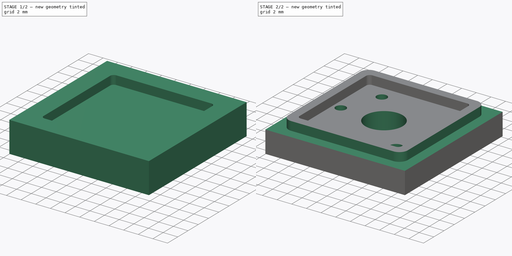
[diagram: build sequence overview — one tinted view per stage of 2, left to right]
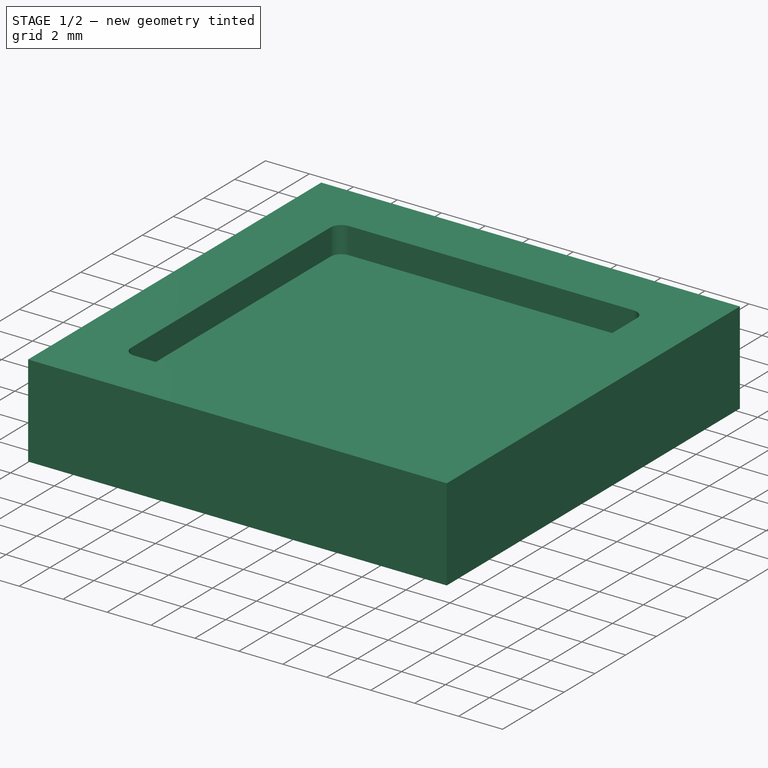
[diagram: stage 1 of 2 — iso view after this stage's code; geometry added in this stage tinted green]
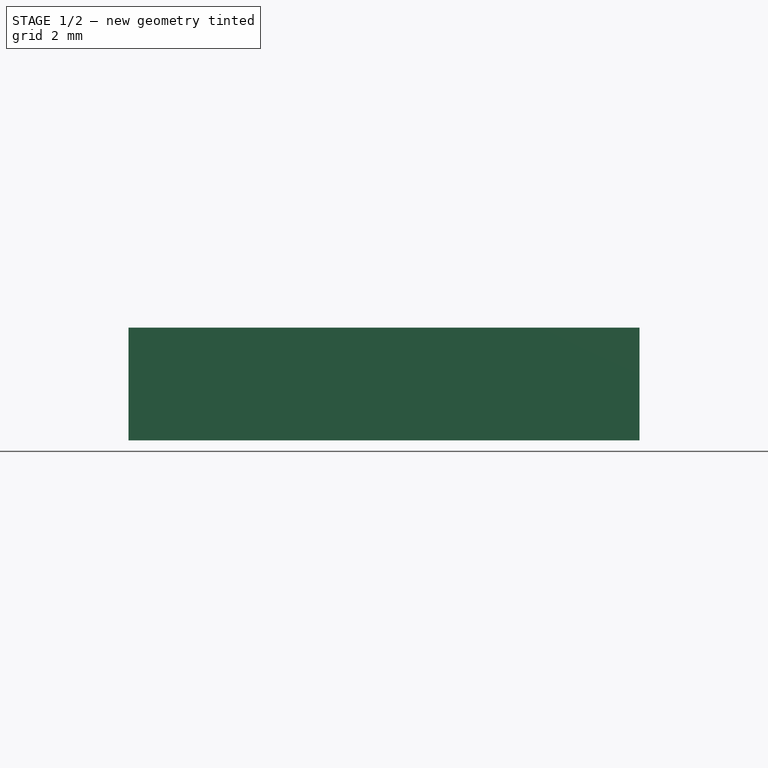
[diagram: stage 1 of 2 — front view after this stage's code; geometry added in this stage tinted green]
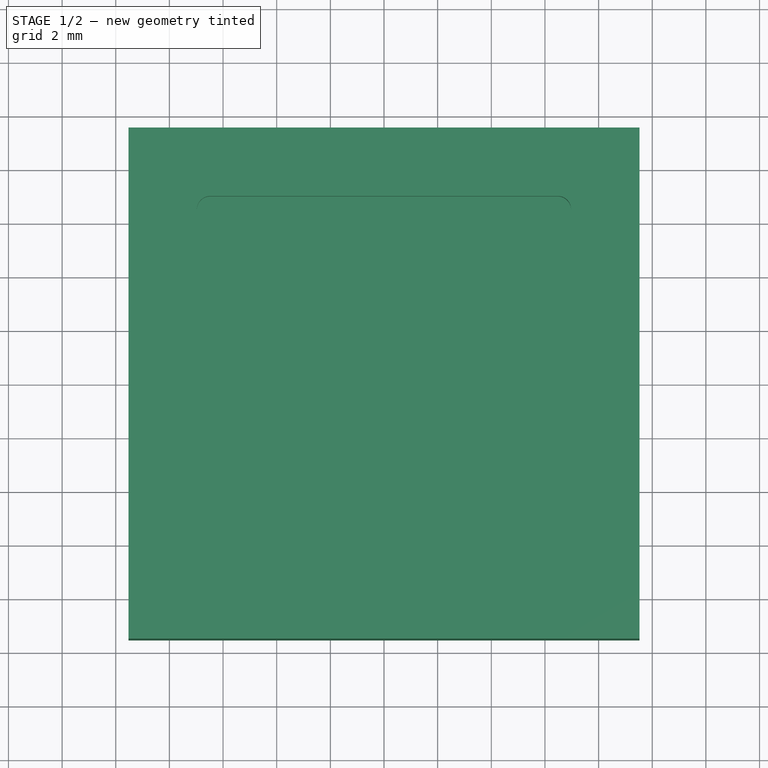
[diagram: stage 1 of 2 — top view after this stage's code; geometry added in this stage tinted green]
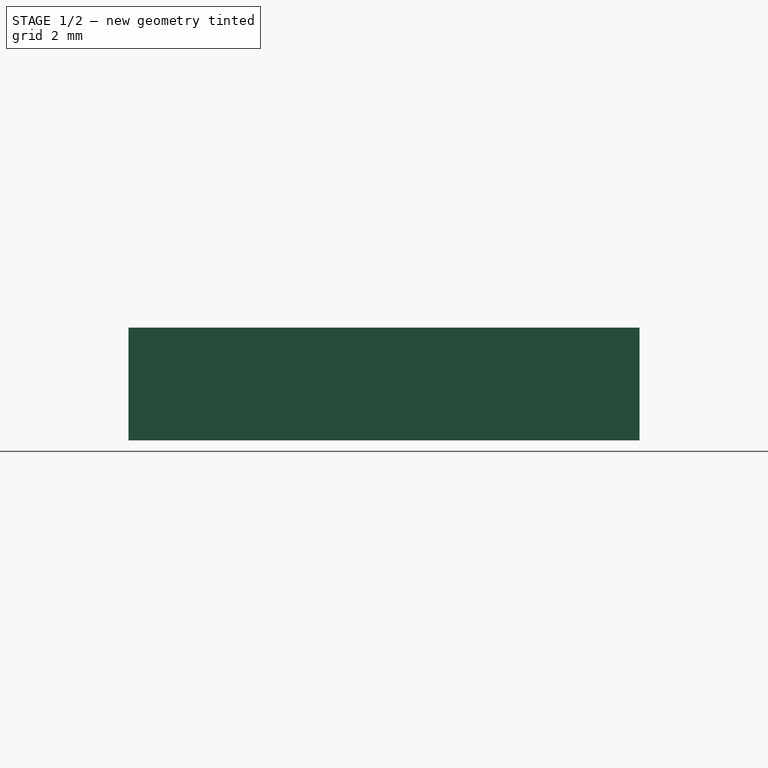
[diagram: stage 1 of 2 — right view after this stage's code; geometry added in this stage tinted green]
FCSTD DOCUMENT  (FreeCAD 0.19R24415 (Git))
Label: switch_slot
License: All rights reserved
LicenseURL: http://en.wikipedia.org/wiki/All_rights_reserved
objects: Sketcher::SketchObject×4, PartDesign::Pocket×3, PartDesign::Pad×1, PartDesign::Body×1
note: 13 computed .brp shape members not serialized (recipe doc carries the construction recipe); baked Part::Feature solids carry a one-line shape summary decoded from their .brp

FEATURE [Sketcher::SketchObject] Sketch001
  FullyConstrained = true
  MapMode = 5
  Support = -> [XY_Plane]
  sketch-geometry (7):
    g0: Circle CenterX=0 CenterY=0 CenterZ=0 NormalX=0 NormalY=0 NormalZ=1 AngleXU=0 Radius=2.55
    g1: GeomPoint X=-3.8 Y=5 Z=0
    g2: GeomPoint X=-5.9 Y=0 Z=0
    g3: GeomPoint X=5.15 Y=-5 Z=0
    g4: Circle CenterX=5.15 CenterY=-5 CenterZ=0 NormalX=0 NormalY=0 NormalZ=1 AngleXU=0 Radius=0.9
    g5: Circle CenterX=-3.8 CenterY=5 CenterZ=0 NormalX=0 NormalY=0 NormalZ=1 AngleXU=0 Radius=0.7
    g6: Circle CenterX=-5.9 CenterY=0 CenterZ=0 NormalX=0 NormalY=0 NormalZ=1 AngleXU=0 Radius=0.7
  constraints (14):
    c: Coincident(g0,g-1)
    c: DistanceY(g3,g0) = 5
    c: DistanceY(g2,g1) = 5
    c: Coincident(g4,g3)
    c: Coincident(g5,g1)
    c: Coincident(g6,g2)
    c: Radius(g5) = 0.7
    c: Radius(g6) = 0.7
    c: Radius(g0) = 2.55
    c: Radius(g4) = 0.9
    c: PointOnObject(g6,g-1)
    c: DistanceX(g6,g5) = 2.1
    c: DistanceX(g6,g0) = 5.9
    c: DistanceX(g0,g4) = 5.15
FEATURE [Sketcher::SketchObject] Sketch
  FullyConstrained = true
  MapMode = 5
  Support = -> [XY_Plane]
  sketch-geometry (4):
    g0: LineSegment StartX=-9.525 StartY=9.525 StartZ=0 EndX=9.525 EndY=9.525 EndZ=0
    g1: LineSegment StartX=9.525 StartY=9.525 StartZ=0 EndX=9.525 EndY=-9.525 EndZ=0
    g2: LineSegment StartX=9.525 StartY=-9.525 StartZ=0 EndX=-9.525 EndY=-9.525 EndZ=0
    g3: LineSegment StartX=-9.525 StartY=-9.525 StartZ=0 EndX=-9.525 EndY=9.525 EndZ=0
  constraints (11):
    c: Coincident(g0,g1)
    c: Coincident(g1,g2)
    c: Coincident(g2,g3)
    c: Coincident(g3,g0)
    c: Horizontal(g0)
    c: Horizontal(g2)
    c: Vertical(g1)
    c: Vertical(g3)
    c: Symmetric(g0,g2,g-1)
    c: Equal(g1,g0)
    c: DistanceX(g2,g2) = 19.05
FEATURE [PartDesign::Pad] Pad
  Direction = (0,0,-1)
  Length = 4.2
  Length2 = 100
  Profile = -> Sketch
  Type = 0
  UseCustomVector = true
FEATURE [Sketcher::SketchObject] Sketch002
  FullyConstrained = true
  MapMode = 5
  sketch-geometry (8):
    g0: LineSegment StartX=-6.475 StartY=6.975 StartZ=0 EndX=6.475 EndY=6.975 EndZ=0
    g1: LineSegment StartX=6.975 StartY=6.475 StartZ=0 EndX=6.975 EndY=-6.475 EndZ=0
    g2: LineSegment StartX=6.475 StartY=-6.975 StartZ=0 EndX=-6.475 EndY=-6.975 EndZ=0
    g3: LineSegment StartX=-6.975 StartY=-6.475 StartZ=0 EndX=-6.975 EndY=6.475 EndZ=0
    g4: ArcOfCircle CenterX=-6.475 CenterY=6.475 CenterZ=0 NormalX=0 NormalY=0 NormalZ=1 AngleXU=0 Radius=0.5 StartAngle=1.5708 EndAngle=3.14159
    g5: ArcOfCircle CenterX=6.475 CenterY=6.475 CenterZ=0 NormalX=0 NormalY=0 NormalZ=1 AngleXU=0 Radius=0.5 StartAngle=1.121e-13 EndAngle=1.5708
    g6: ArcOfCircle CenterX=6.475 CenterY=-6.475 CenterZ=0 NormalX=0 NormalY=0 NormalZ=1 AngleXU=0 Radius=0.5 StartAngle=4.71239 EndAngle=6.28319
    g7: ArcOfCircle CenterX=-6.475 CenterY=-6.475 CenterZ=0 NormalX=0 NormalY=0 NormalZ=1 AngleXU=0 Radius=0.5 StartAngle=3.14159 EndAngle=4.71239
  constraints (18):
    c: Horizontal(g0)
    c: Horizontal(g2)
    c: Vertical(g1)
    c: Vertical(g3)
    c: Tangent(g3,g4) = 1.5708
    c: Tangent(g0,g4) = 1.5708
    c: Tangent(g0,g5) = 1.5708
    c: Tangent(g1,g5) = 1.5708
    c: Tangent(g1,g6) = 1.5708
    c: Tangent(g2,g6) = 1.5708
    c: Tangent(g3,g7) = 1.5708
    c: Tangent(g2,g7) = 1.5708
    c: Radius(g4) = 0.5
    c: DistanceX(g3,g1) = 13.95
    c: Equal(g4,g7)
    c: Equal(g2,g1)
    c: Symmetric(g5,g7,g-1)
    c: Symmetric(g6,g4,g-1)
FEATURE [PartDesign::Pocket] Pocket
  BaseFeature = -> Pad
  Length = 1.2
  Length2 = 100
  Profile = -> Sketch002
  Type = 0
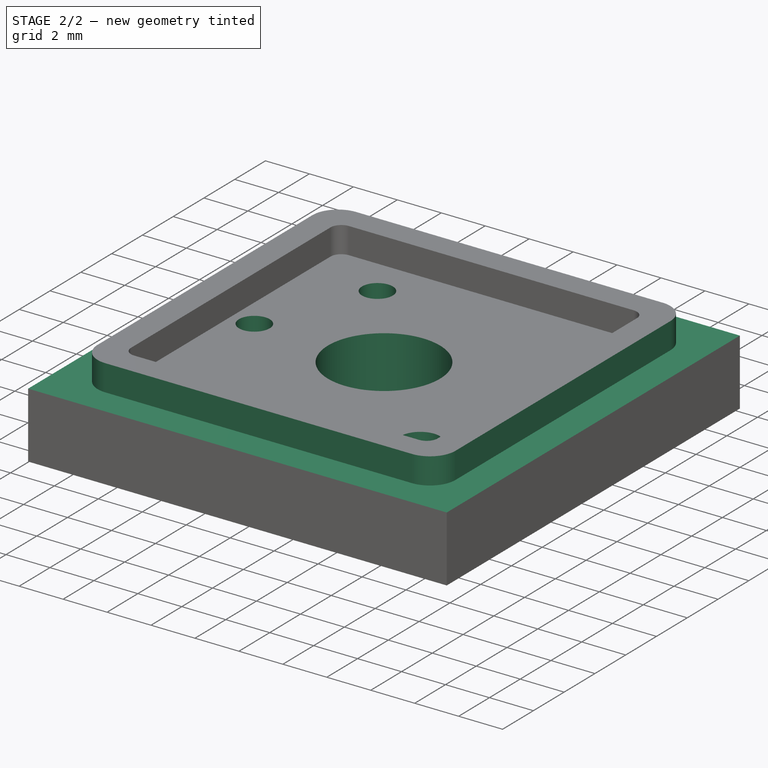
[diagram: stage 2 of 2 — iso view after this stage's code; geometry added in this stage tinted green]
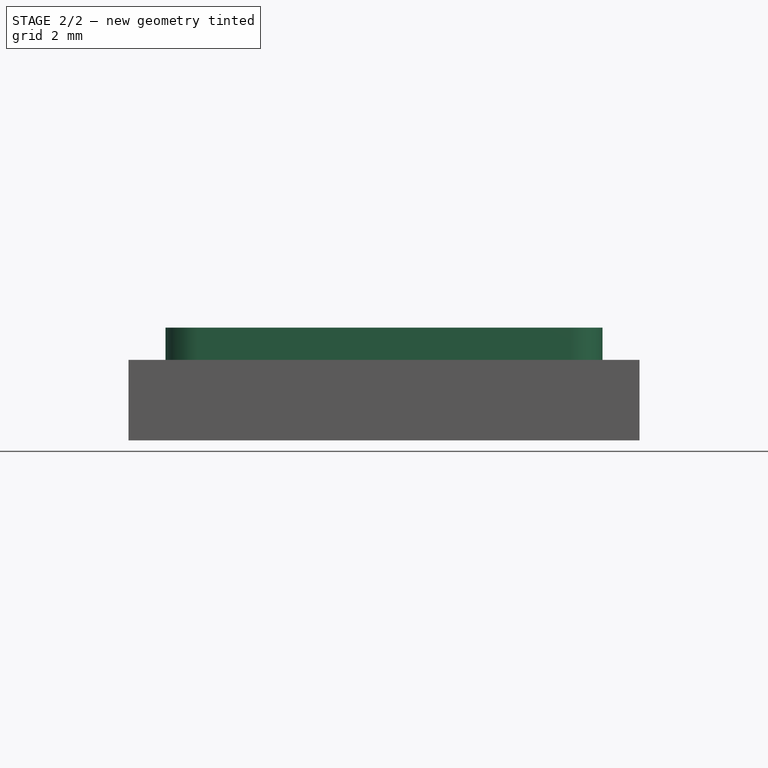
[diagram: stage 2 of 2 — front view after this stage's code; geometry added in this stage tinted green]
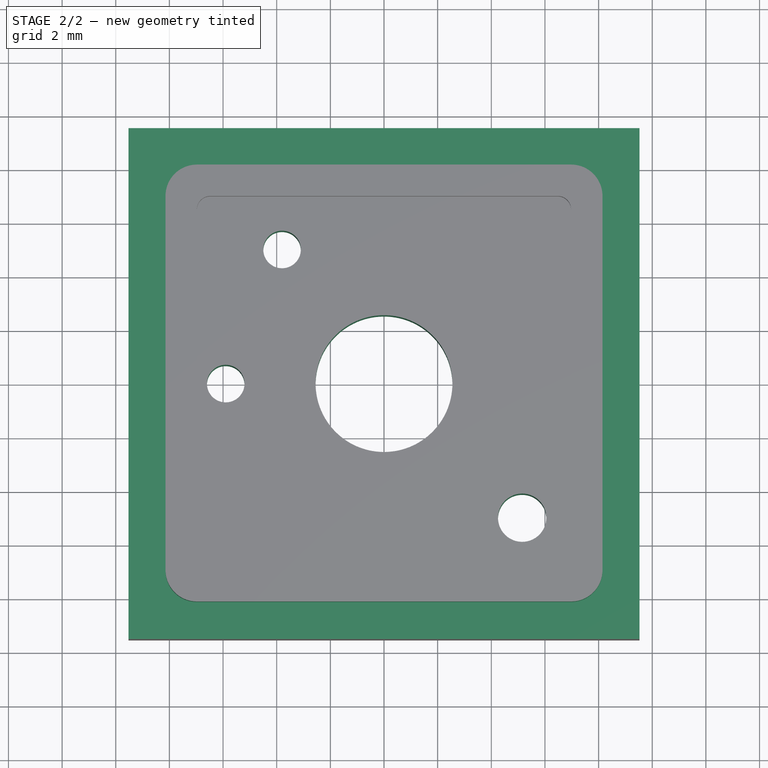
[diagram: stage 2 of 2 — top view after this stage's code; geometry added in this stage tinted green]
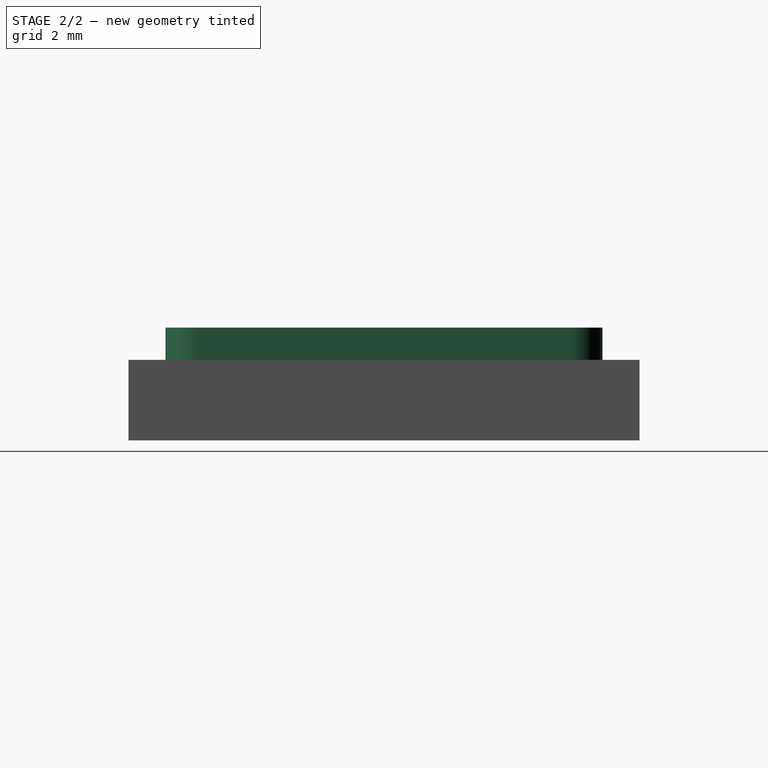
[diagram: stage 2 of 2 — right view after this stage's code; geometry added in this stage tinted green]
FEATURE [PartDesign::Pocket] Pocket001
  BaseFeature = -> Pocket
  Length = 5.2
  Length2 = 100
  Profile = -> Sketch001
  Type = 1
FEATURE [Sketcher::SketchObject] Sketch003
  FullyConstrained = true
  MapMode = 5
  Support = -> [XY_Plane]
  sketch-geometry (12):
    g0: LineSegment StartX=-6.975 StartY=8.145 StartZ=0 EndX=6.975 EndY=8.145 EndZ=0
    g1: LineSegment StartX=8.145 StartY=6.975 StartZ=0 EndX=8.145 EndY=-6.975 EndZ=0
    g2: LineSegment StartX=6.975 StartY=-8.145 StartZ=0 EndX=-6.975 EndY=-8.145 EndZ=0
    g3: LineSegment StartX=-8.145 StartY=-6.975 StartZ=0 EndX=-8.145 EndY=6.975 EndZ=0
    g4: ArcOfCircle CenterX=6.975 CenterY=6.975 CenterZ=0 NormalX=0 NormalY=0 NormalZ=1 AngleXU=0 Radius=1.17 StartAngle=0 EndAngle=1.5708
    g5: ArcOfCircle CenterX=-6.975 CenterY=6.975 CenterZ=0 NormalX=0 NormalY=0 NormalZ=1 AngleXU=0 Radius=1.17 StartAngle=1.5708 EndAngle=3.14159
    g6: ArcOfCircle CenterX=-6.975 CenterY=-6.975 CenterZ=0 NormalX=0 NormalY=0 NormalZ=1 AngleXU=0 Radius=1.17 StartAngle=3.14159 EndAngle=4.71239
    g7: ArcOfCircle CenterX=6.975 CenterY=-6.975 CenterZ=0 NormalX=0 NormalY=0 NormalZ=1 AngleXU=0 Radius=1.17 StartAngle=4.71239 EndAngle=6.28319
    g8: LineSegment StartX=-9.525 StartY=9.525 StartZ=0 EndX=9.525 EndY=9.525 EndZ=0
    g9: LineSegment StartX=9.525 StartY=9.525 StartZ=0 EndX=9.525 EndY=-9.525 EndZ=0
    g10: LineSegment StartX=9.525 StartY=-9.525 StartZ=0 EndX=-9.525 EndY=-9.525 EndZ=0
    g11: LineSegment StartX=-9.525 StartY=-9.525 StartZ=0 EndX=-9.525 EndY=9.525 EndZ=0
  constraints (29):
    c: Horizontal(g0)
    c: Horizontal(g2)
    c: Vertical(g1)
    c: Vertical(g3)
    c: Tangent(g0,g4) = 1.5708
    c: Tangent(g1,g4) = 1.5708
    c: Tangent(g0,g5) = 1.5708
    c: Tangent(g3,g5) = 1.5708
    c: Tangent(g3,g6) = 1.5708
    c: Tangent(g2,g6) = 1.5708
    c: Tangent(g2,g7) = 1.5708
    c: Tangent(g1,g7) = 1.5708
    c: Radius(g5) = 1.17
    c: DistanceX(g3,g1) = 16.29
    c: Equal(g2,g1)
    c: Symmetric(g4,g6,g-1)
    c: Symmetric(g7,g5,g-1)
    c: Equal(g5,g4)
    c: Coincident(g8,g9)
    c: Coincident(g9,g10)
    c: Coincident(g10,g11)
    c: Coincident(g11,g8)
    c: Horizontal(g8)
    c: Horizontal(g10)
    c: Vertical(g9)
    c: Vertical(g11)
    c: Symmetric(g8,g10,g-1)
    c: Equal(g9,g10)
    c: DistanceX(g10,g10) = 19.05
FEATURE [PartDesign::Pocket] Pocket002
  BaseFeature = -> Pocket001
  Length = 1.2
  Length2 = 100
  Profile = -> Sketch003
  Type = 0
FEATURE [PartDesign::Body] Body
  Group = -> [Sketch001,Sketch,Pad,Sketch002,Pocket,Pocket001,Sketch003,Pocket002]
  Origin = -> Origin
  Tip = -> Pocket002
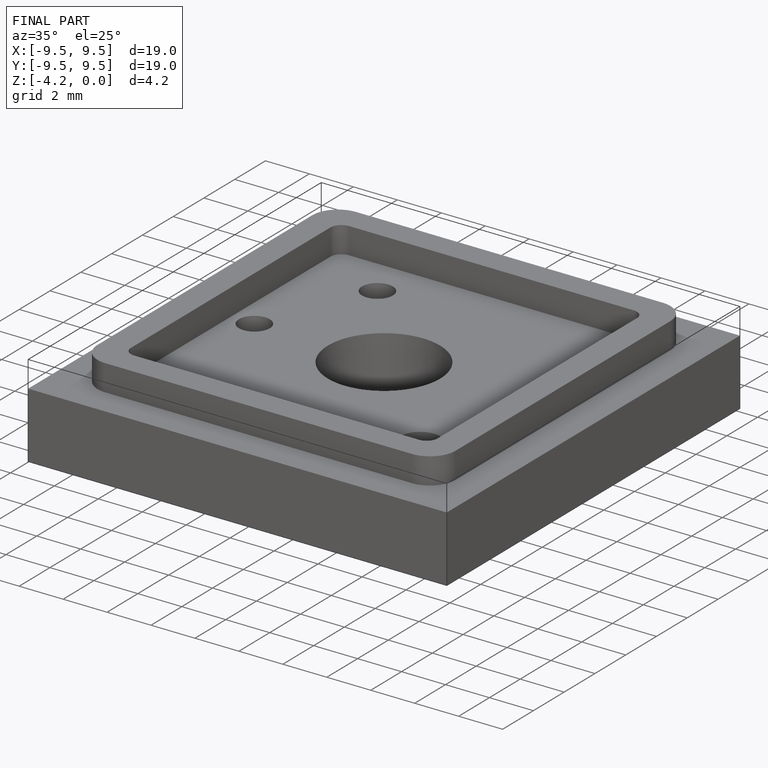
[diagram: finished part — iso view with bounding-box wireframe]
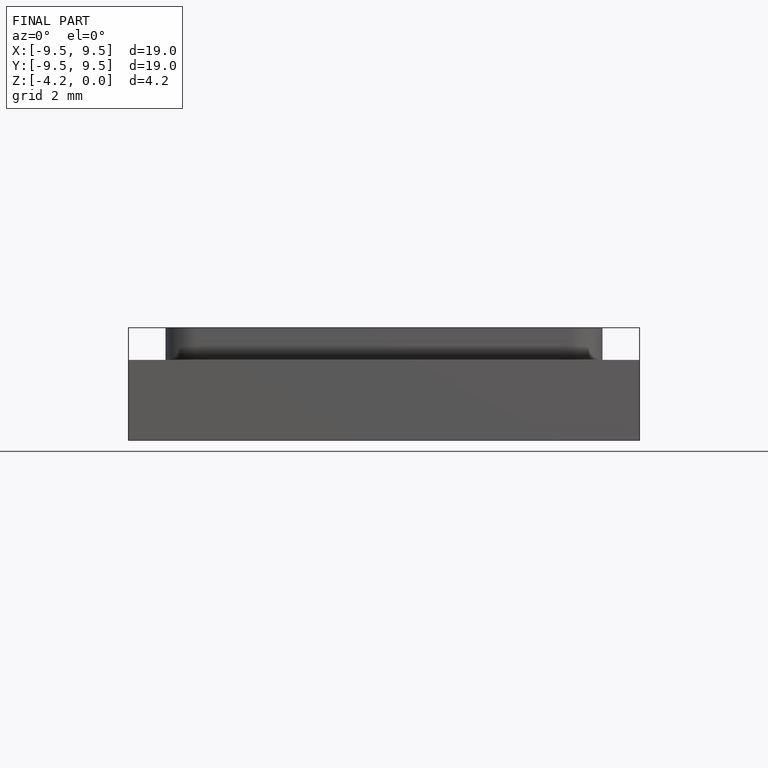
[diagram: finished part — front view with bounding-box wireframe]
